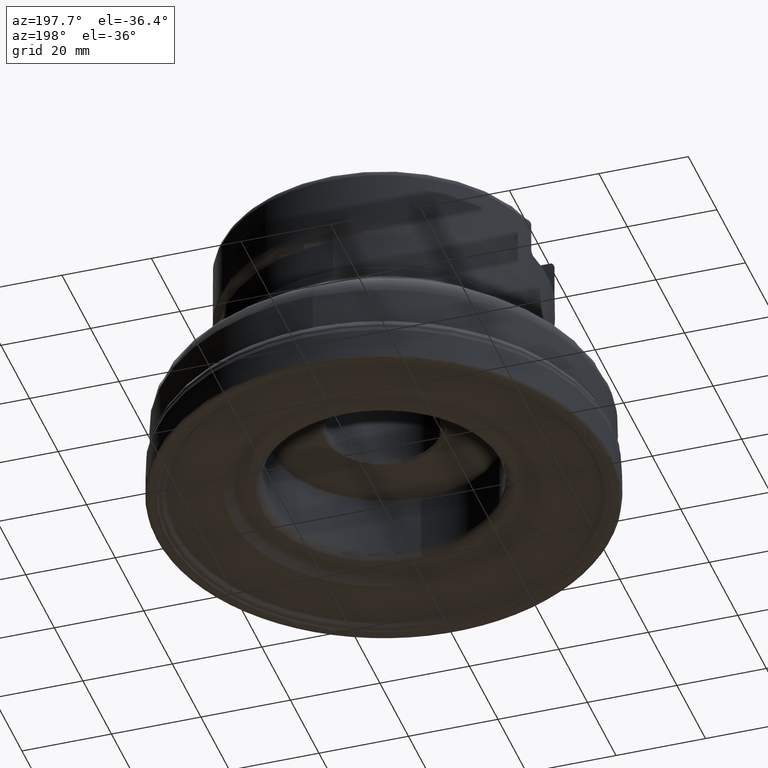
[diagram: clean part render]
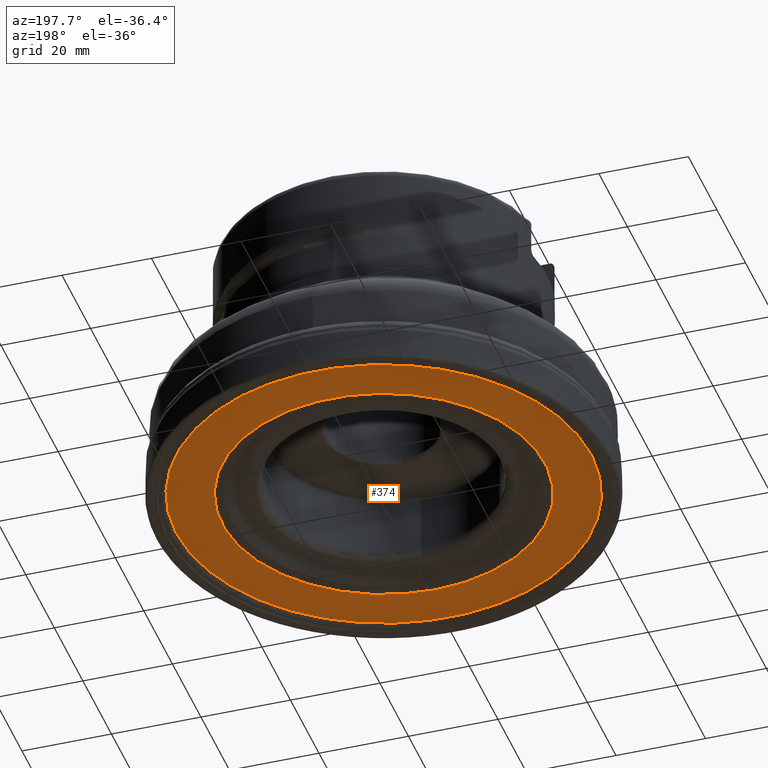
[diagram: same view with one face highlighted and labeled with its STEP entity id]
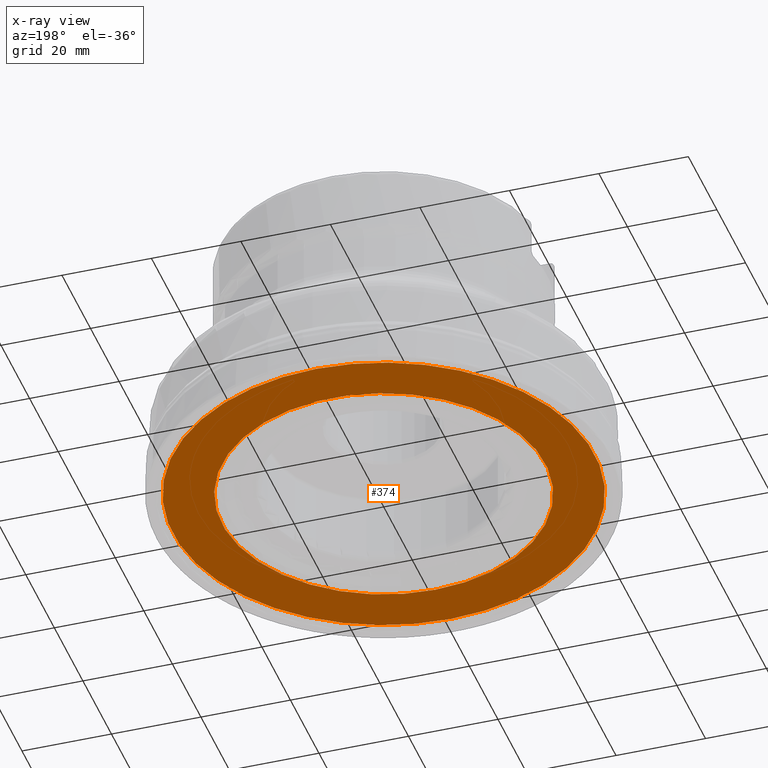
[diagram: x-ray of the same camera — body ghosted, the highlighted face saturated]
A machine part, auxiliary view. The second image highlights one B-rep face of the part: STEP entity #374.
The next image is the same camera in x-ray: the body ghosted, the highlighted face saturated — about 0% of this face is hidden behind the body in this view.
In plain terms, the highlighted planar face has unit normal (0, 0, 1).
Its self-contained STEP definition (entity closure, byte-faithful):
#178=FACE_BOUND('',#492,.T.);
#179=FACE_BOUND('',#493,.T.);
#290=PLANE('',#1233);
#374=ADVANCED_FACE('',(#178,#179),#290,.F.);
#492=EDGE_LOOP('',(#732));
#493=EDGE_LOOP('',(#733));
#623=CIRCLE('',#1231,36.1084733132147);
#624=CIRCLE('',#1232,47.1136775097147);
#732=ORIENTED_EDGE('',*,*,#1057,.T.);
#733=ORIENTED_EDGE('',*,*,#1058,.T.);
#950=VERTEX_POINT('',#2088);
#951=VERTEX_POINT('',#2090);
#1057=EDGE_CURVE('',#950,#950,#623,.T.);
#1058=EDGE_CURVE('',#951,#951,#624,.T.);
#1231=AXIS2_PLACEMENT_3D('',#2087,#1404,#1405);
#1232=AXIS2_PLACEMENT_3D('',#2089,#1406,#1407);
#1233=AXIS2_PLACEMENT_3D('',#2091,#1408,#1409);
#1404=DIRECTION('',(0.,1.17145536458252E-15,1.));
#1405=DIRECTION('',(0.,-1.,1.17102388572767E-15));
#1406=DIRECTION('',(0.,-1.17145536458252E-15,-1.));
#1407=DIRECTION('',(0.,-1.,1.17363605898434E-15));
#1408=DIRECTION('',(0.,1.17145536458252E-15,1.));
#1409=DIRECTION('',(0.,-1.,1.17137202715334E-15));
#2087=CARTESIAN_POINT('',(0.,1.28860090104078E-15,1.10000000000001));
#2088=CARTESIAN_POINT('',(0.,-36.1084733132147,1.10000000000005));
#2089=CARTESIAN_POINT('',(0.,1.28860090104078E-15,1.10000000000001));
#2090=CARTESIAN_POINT('',(0.,-47.1136775097147,1.10000000000006));
#2091=CARTESIAN_POINT('',(47.7334814124333,1.28860090104078E-15,1.10000000000001));